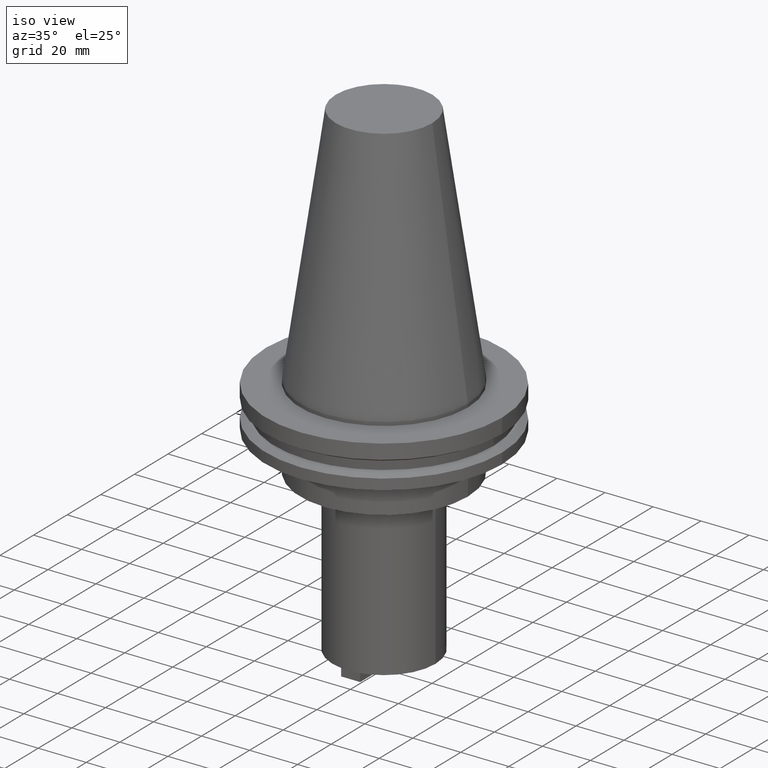
[diagram: clean part render]
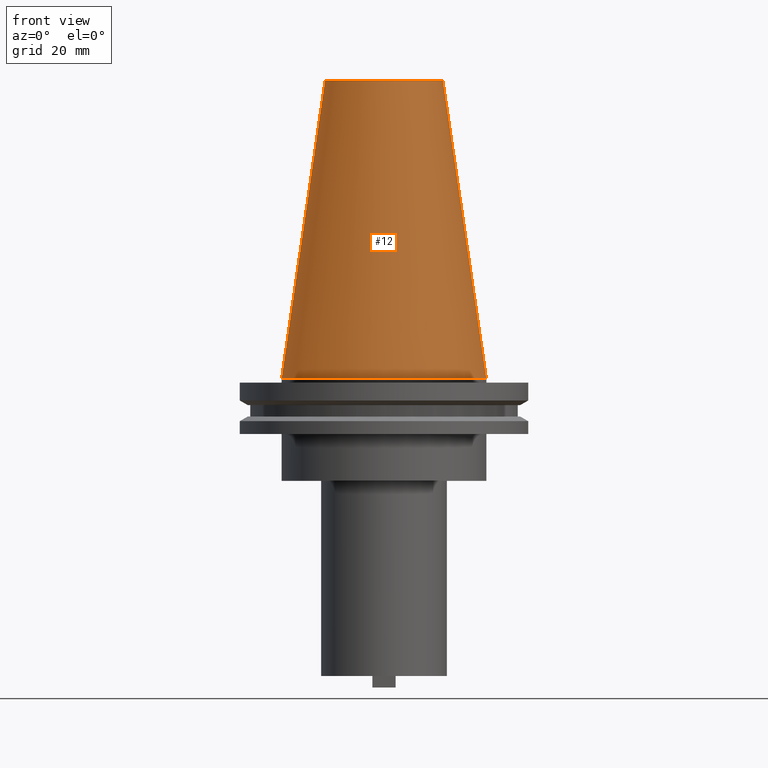
[diagram: tour spotlight — one face highlighted and labeled with its STEP entity id]
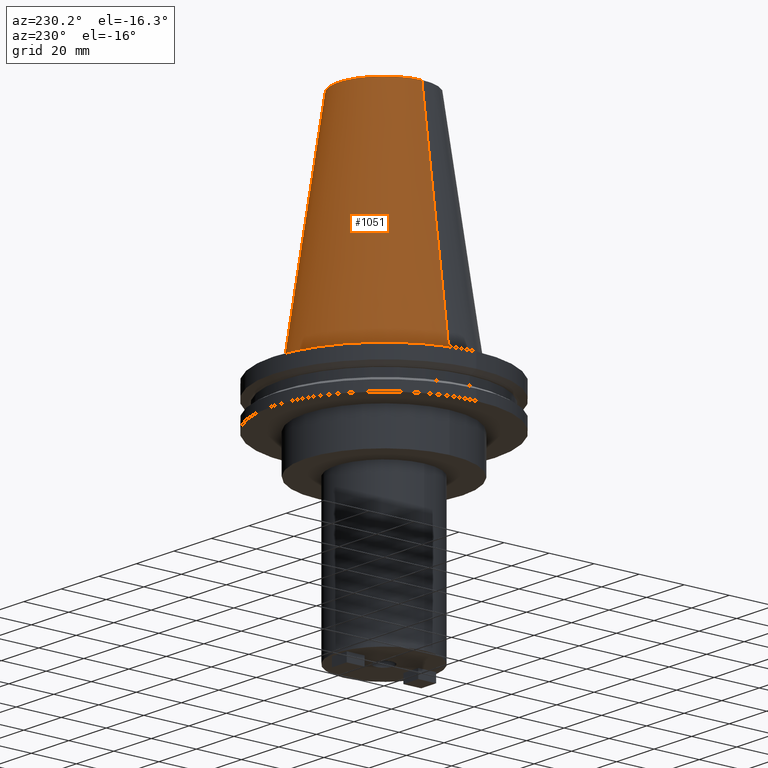
[diagram: tour spotlight — one face highlighted and labeled with its STEP entity id]
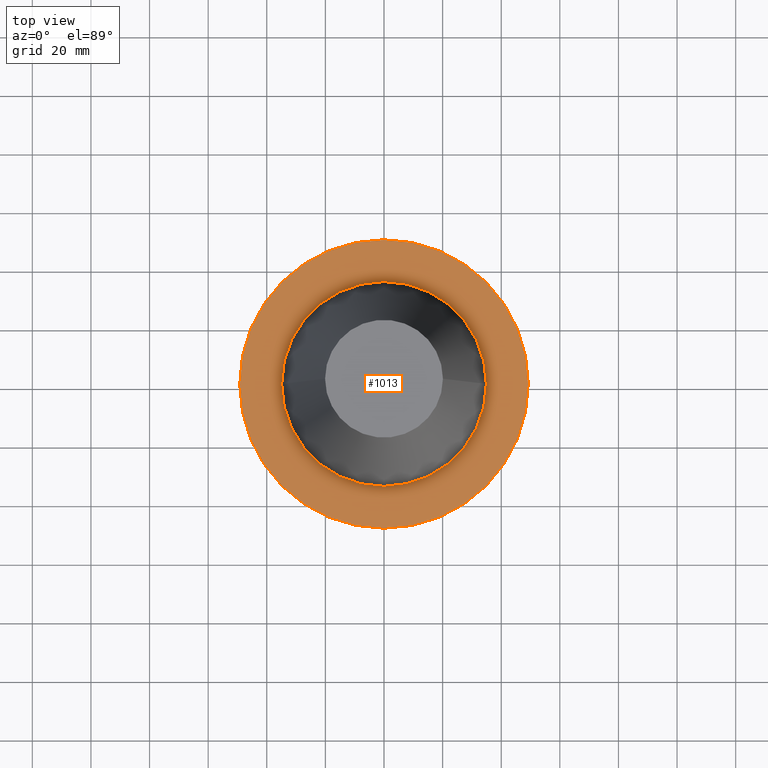
[diagram: tour spotlight — one face highlighted and labeled with its STEP entity id]
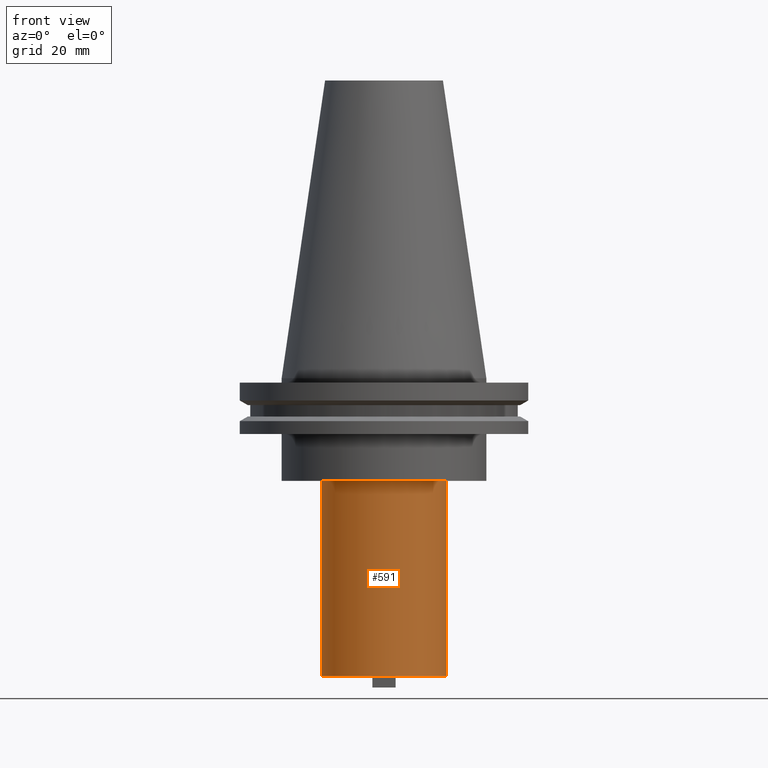
[diagram: tour spotlight — one face highlighted and labeled with its STEP entity id]
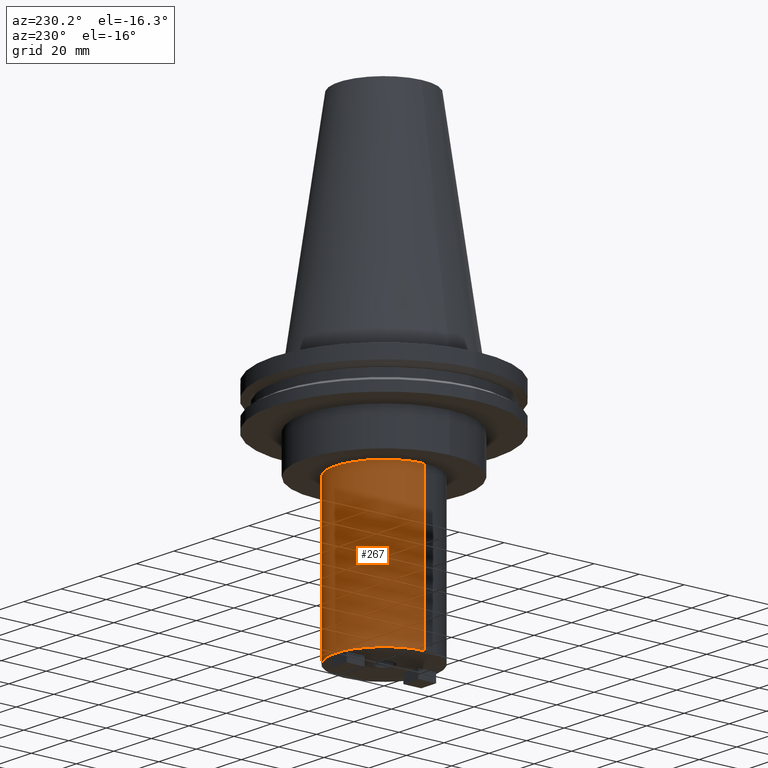
[diagram: tour spotlight — one face highlighted and labeled with its STEP entity id]
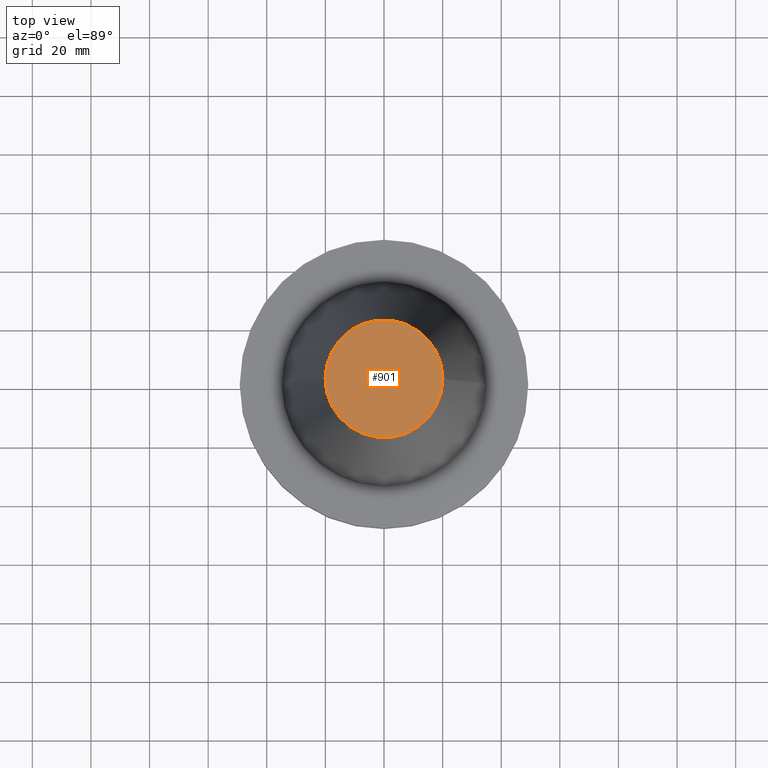
[diagram: tour spotlight — one face highlighted and labeled with its STEP entity id]
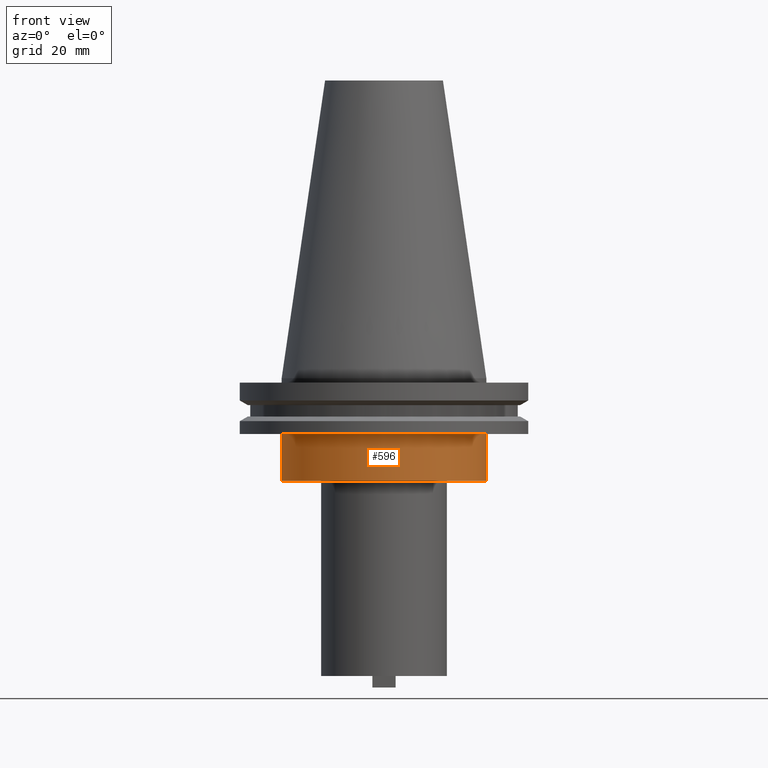
[diagram: tour spotlight — one face highlighted and labeled with its STEP entity id]
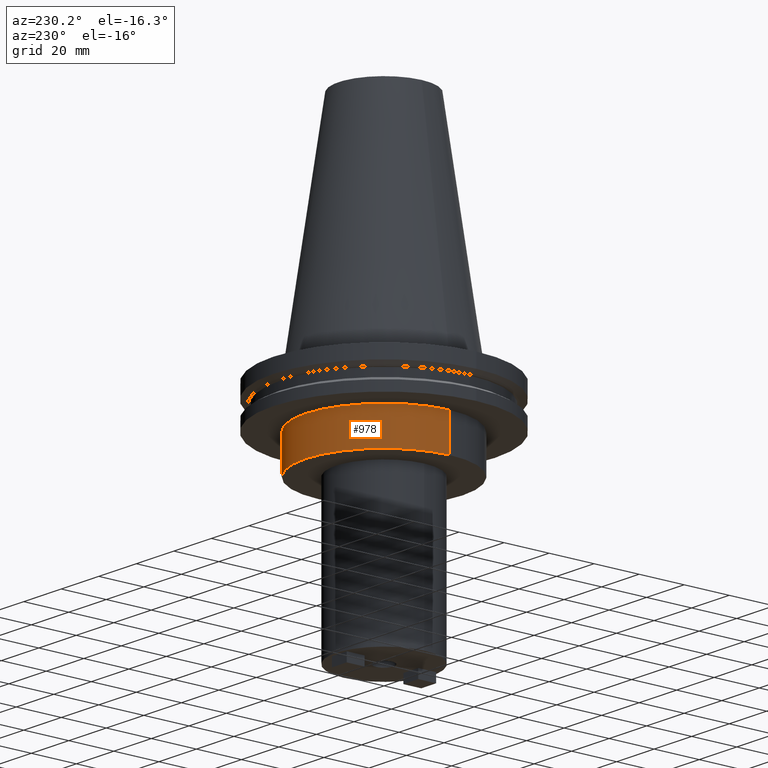
[diagram: tour spotlight — one face highlighted and labeled with its STEP entity id]
A machine part: a face-by-face anatomy tour. The part has 38 B-rep faces; the first image is the clean iso view, then the 8 largest visible faces are spotlighted one at a time (largest first), each with its STEP entity span.

Face 1 — front view, entity #12. In plain terms, the highlighted conical surface has half-angle 8.297 deg.
Definition (entity closure, byte-faithful):
#1 = VECTOR ( 'NONE', #899, 999.9999999999998863 ) ;
#12 = ADVANCED_FACE ( 'NONE', ( #948 ), #171, .T. ) ;
#29 = DIRECTION ( 'NONE',  ( -1.000000000000000000, 0.000000000000000000, 0.000000000000000000 ) ) ;
#53 = DIRECTION ( 'NONE',  ( 0.000000000000000000, 0.000000000000000000, -1.000000000000000000 ) ) ;
#78 = CARTESIAN_POINT ( 'NONE',  ( -34.92499999999999005, 0.000000000000000000, 0.000000000000000000 ) ) ;
#92 = CIRCLE ( 'NONE', #876, 20.10819343178871321 ) ;
#136 = ORIENTED_EDGE ( 'NONE', *, *, #1087, .T. ) ;
#171 = CONICAL_SURFACE ( 'NONE', #402, 34.92499999999999005, 0.1448138465474119452 ) ;
#238 = CARTESIAN_POINT ( 'NONE',  ( 34.92499999999999005, 4.277078946022130098E-15, 0.000000000000000000 ) ) ;
#294 = ORIENTED_EDGE ( 'NONE', *, *, #956, .F. ) ;
#303 = ORIENTED_EDGE ( 'NONE', *, *, #752, .F. ) ;
#325 = ORIENTED_EDGE ( 'NONE', *, *, #884, .T. ) ;
#376 = VERTEX_POINT ( 'NONE', #947 ) ;
#402 = AXIS2_PLACEMENT_3D ( 'NONE', #789, #53, #29 ) ;
#498 = LINE ( 'NONE', #78, #708 ) ;
#515 = DIRECTION ( 'NONE',  ( 1.000000000000000000, 0.000000000000000000, 0.000000000000000000 ) ) ;
#565 = LINE ( 'NONE', #238, #1 ) ;
#597 = CARTESIAN_POINT ( 'NONE',  ( 0.000000000000000000, 0.000000000000000000, 0.000000000000000000 ) ) ;
#654 = EDGE_LOOP ( 'NONE', ( #294, #303, #325, #136 ) ) ;
#708 = VECTOR ( 'NONE', #913, 999.9999999999998863 ) ;
#716 = DIRECTION ( 'NONE',  ( -0.000000000000000000, -0.000000000000000000, 1.000000000000000000 ) ) ;
#739 = CARTESIAN_POINT ( 'NONE',  ( 34.92499999999999005, 4.277078946022130098E-15, 0.000000000000000000 ) ) ;
#752 = EDGE_CURVE ( 'NONE', #755, #923, #92, .T. ) ;
#755 = VERTEX_POINT ( 'NONE', #887 ) ;
#756 = CARTESIAN_POINT ( 'NONE',  ( 20.10819343178871321, 3.369811209154858606E-15, 101.5999999999999801 ) ) ;
#763 = AXIS2_PLACEMENT_3D ( 'NONE', #597, #942, #515 ) ;
#789 = CARTESIAN_POINT ( 'NONE',  ( 0.000000000000000000, 0.000000000000000000, 0.000000000000000000 ) ) ;
#803 = CARTESIAN_POINT ( 'NONE',  ( 0.000000000000000000, 0.000000000000000000, 101.5999999999999801 ) ) ;
#868 = DIRECTION ( 'NONE',  ( 1.000000000000000000, 0.000000000000000000, 0.000000000000000000 ) ) ;
#876 = AXIS2_PLACEMENT_3D ( 'NONE', #803, #716, #868 ) ;
#884 = EDGE_CURVE ( 'NONE', #755, #376, #498, .T. ) ;
#887 = CARTESIAN_POINT ( 'NONE',  ( -20.10819343178871321, 0.000000000000000000, 101.5999999999999801 ) ) ;
#894 = VERTEX_POINT ( 'NONE', #739 ) ;
#899 = DIRECTION ( 'NONE',  ( 0.1443082272672999988, 1.767266086135277066E-17, -0.9895327864921755756 ) ) ;
#913 = DIRECTION ( 'NONE',  ( -0.1443082272672999988, 0.000000000000000000, -0.9895327864921755756 ) ) ;
#923 = VERTEX_POINT ( 'NONE', #756 ) ;
#942 = DIRECTION ( 'NONE',  ( -0.000000000000000000, -0.000000000000000000, 1.000000000000000000 ) ) ;
#947 = CARTESIAN_POINT ( 'NONE',  ( -34.92499999999999005, 0.000000000000000000, 0.000000000000000000 ) ) ;
#948 = FACE_OUTER_BOUND ( 'NONE', #654, .T. ) ;
#956 = EDGE_CURVE ( 'NONE', #923, #894, #565, .T. ) ;
#1055 = CIRCLE ( 'NONE', #763, 34.92499999999999005 ) ;
#1087 = EDGE_CURVE ( 'NONE', #376, #894, #1055, .T. ) ;

Face 2 — auxiliary view, entity #1051. In plain terms, the highlighted conical surface has half-angle 8.297 deg.
Definition (entity closure, byte-faithful):
#1 = VECTOR ( 'NONE', #899, 999.9999999999998863 ) ;
#78 = CARTESIAN_POINT ( 'NONE',  ( -34.92499999999999005, 0.000000000000000000, 0.000000000000000000 ) ) ;
#100 = DIRECTION ( 'NONE',  ( 0.000000000000000000, 0.000000000000000000, -1.000000000000000000 ) ) ;
#148 = DIRECTION ( 'NONE',  ( 1.000000000000000000, 0.000000000000000000, 0.000000000000000000 ) ) ;
#176 = CIRCLE ( 'NONE', #494, 34.92499999999999005 ) ;
#203 = EDGE_LOOP ( 'NONE', ( #830, #582, #976, #662 ) ) ;
#206 = CONICAL_SURFACE ( 'NONE', #512, 34.92499999999999005, 0.1448138465474119452 ) ;
#238 = CARTESIAN_POINT ( 'NONE',  ( 34.92499999999999005, 4.277078946022130098E-15, 0.000000000000000000 ) ) ;
#311 = EDGE_CURVE ( 'NONE', #923, #755, #511, .T. ) ;
#362 = CARTESIAN_POINT ( 'NONE',  ( 0.000000000000000000, 0.000000000000000000, 101.5999999999999801 ) ) ;
#376 = VERTEX_POINT ( 'NONE', #947 ) ;
#435 = AXIS2_PLACEMENT_3D ( 'NONE', #362, #635, #869 ) ;
#494 = AXIS2_PLACEMENT_3D ( 'NONE', #1075, #656, #148 ) ;
#498 = LINE ( 'NONE', #78, #708 ) ;
#511 = CIRCLE ( 'NONE', #435, 20.10819343178871321 ) ;
#512 = AXIS2_PLACEMENT_3D ( 'NONE', #855, #100, #1014 ) ;
#565 = LINE ( 'NONE', #238, #1 ) ;
#582 = ORIENTED_EDGE ( 'NONE', *, *, #956, .T. ) ;
#600 = FACE_OUTER_BOUND ( 'NONE', #203, .T. ) ;
#635 = DIRECTION ( 'NONE',  ( -0.000000000000000000, -0.000000000000000000, 1.000000000000000000 ) ) ;
#656 = DIRECTION ( 'NONE',  ( -0.000000000000000000, -0.000000000000000000, 1.000000000000000000 ) ) ;
#662 = ORIENTED_EDGE ( 'NONE', *, *, #884, .F. ) ;
#708 = VECTOR ( 'NONE', #913, 999.9999999999998863 ) ;
#739 = CARTESIAN_POINT ( 'NONE',  ( 34.92499999999999005, 4.277078946022130098E-15, 0.000000000000000000 ) ) ;
#755 = VERTEX_POINT ( 'NONE', #887 ) ;
#756 = CARTESIAN_POINT ( 'NONE',  ( 20.10819343178871321, 3.369811209154858606E-15, 101.5999999999999801 ) ) ;
#830 = ORIENTED_EDGE ( 'NONE', *, *, #311, .F. ) ;
#855 = CARTESIAN_POINT ( 'NONE',  ( 0.000000000000000000, 0.000000000000000000, 0.000000000000000000 ) ) ;
#869 = DIRECTION ( 'NONE',  ( 1.000000000000000000, 0.000000000000000000, 0.000000000000000000 ) ) ;
#884 = EDGE_CURVE ( 'NONE', #755, #376, #498, .T. ) ;
#887 = CARTESIAN_POINT ( 'NONE',  ( -20.10819343178871321, 0.000000000000000000, 101.5999999999999801 ) ) ;
#894 = VERTEX_POINT ( 'NONE', #739 ) ;
#899 = DIRECTION ( 'NONE',  ( 0.1443082272672999988, 1.767266086135277066E-17, -0.9895327864921755756 ) ) ;
#911 = EDGE_CURVE ( 'NONE', #894, #376, #176, .T. ) ;
#913 = DIRECTION ( 'NONE',  ( -0.1443082272672999988, 0.000000000000000000, -0.9895327864921755756 ) ) ;
#923 = VERTEX_POINT ( 'NONE', #756 ) ;
#947 = CARTESIAN_POINT ( 'NONE',  ( -34.92499999999999005, 0.000000000000000000, 0.000000000000000000 ) ) ;
#956 = EDGE_CURVE ( 'NONE', #923, #894, #565, .T. ) ;
#976 = ORIENTED_EDGE ( 'NONE', *, *, #911, .T. ) ;
#1014 = DIRECTION ( 'NONE',  ( -1.000000000000000000, 0.000000000000000000, 0.000000000000000000 ) ) ;
#1051 = ADVANCED_FACE ( 'NONE', ( #600 ), #206, .T. ) ;
#1075 = CARTESIAN_POINT ( 'NONE',  ( 0.000000000000000000, 0.000000000000000000, 0.000000000000000000 ) ) ;

Face 3 — top view, entity #1013. In plain terms, the highlighted planar face has unit normal (0, 0, -1).
Definition (entity closure, byte-faithful):
#135 = EDGE_CURVE ( 'NONE', #969, #181, #384, .T. ) ;
#147 = ORIENTED_EDGE ( 'NONE', *, *, #697, .F. ) ;
#151 = CARTESIAN_POINT ( 'NONE',  ( 0.000000000000000000, 0.000000000000000000, -1.499999999999987566 ) ) ;
#154 = EDGE_CURVE ( 'NONE', #1074, #817, #986, .T. ) ;
#173 = CIRCLE ( 'NONE', #321, 49.21499999999999631 ) ;
#181 = VERTEX_POINT ( 'NONE', #332 ) ;
#182 = FACE_OUTER_BOUND ( 'NONE', #1061, .T. ) ;
#190 = AXIS2_PLACEMENT_3D ( 'NONE', #861, #437, #686 ) ;
#239 = DIRECTION ( 'NONE',  ( -0.000000000000000000, -0.000000000000000000, 1.000000000000000000 ) ) ;
#308 = DIRECTION ( 'NONE',  ( -0.000000000000000000, -0.000000000000000000, 1.000000000000000000 ) ) ;
#320 = DIRECTION ( 'NONE',  ( 1.000000000000000000, 0.000000000000000000, 0.000000000000000000 ) ) ;
#321 = AXIS2_PLACEMENT_3D ( 'NONE', #151, #400, #971 ) ;
#332 = CARTESIAN_POINT ( 'NONE',  ( 49.21499999999999631, 0.000000000000000000, -1.499999999999987566 ) ) ;
#360 = FACE_BOUND ( 'NONE', #804, .T. ) ;
#384 = CIRCLE ( 'NONE', #743, 49.21499999999999631 ) ;
#400 = DIRECTION ( 'NONE',  ( -0.000000000000000000, -0.000000000000000000, 1.000000000000000000 ) ) ;
#404 = CARTESIAN_POINT ( 'NONE',  ( 0.000000000000000000, 0.000000000000000000, -1.499999999999987566 ) ) ;
#421 = DIRECTION ( 'NONE',  ( -0.000000000000000000, -0.000000000000000000, 1.000000000000000000 ) ) ;
#437 = DIRECTION ( 'NONE',  ( 0.000000000000000000, 0.000000000000000000, -1.000000000000000000 ) ) ;
#456 = ORIENTED_EDGE ( 'NONE', *, *, #154, .F. ) ;
#510 = AXIS2_PLACEMENT_3D ( 'NONE', #404, #239, #587 ) ;
#552 = EDGE_CURVE ( 'NONE', #181, #969, #173, .T. ) ;
#587 = DIRECTION ( 'NONE',  ( 1.000000000000000000, 0.000000000000000000, 0.000000000000000000 ) ) ;
#607 = CARTESIAN_POINT ( 'NONE',  ( 0.000000000000000000, 0.000000000000000000, -1.499999999999987566 ) ) ;
#680 = ORIENTED_EDGE ( 'NONE', *, *, #552, .T. ) ;
#686 = DIRECTION ( 'NONE',  ( -1.000000000000000000, 0.000000000000000000, -0.000000000000000000 ) ) ;
#692 = PLANE ( 'NONE',  #190 ) ;
#697 = EDGE_CURVE ( 'NONE', #817, #1074, #725, .T. ) ;
#725 = CIRCLE ( 'NONE', #775, 34.92499999999999005 ) ;
#743 = AXIS2_PLACEMENT_3D ( 'NONE', #1068, #421, #320 ) ;
#761 = CARTESIAN_POINT ( 'NONE',  ( -49.21499999999999631, 6.027099222003697826E-15, -1.499999999999987566 ) ) ;
#775 = AXIS2_PLACEMENT_3D ( 'NONE', #607, #308, #798 ) ;
#780 = CARTESIAN_POINT ( 'NONE',  ( -34.92499999999999005, 4.277078946022130098E-15, -1.499999999999987566 ) ) ;
#798 = DIRECTION ( 'NONE',  ( 1.000000000000000000, 0.000000000000000000, 0.000000000000000000 ) ) ;
#804 = EDGE_LOOP ( 'NONE', ( #147, #456 ) ) ;
#817 = VERTEX_POINT ( 'NONE', #892 ) ;
#861 = CARTESIAN_POINT ( 'NONE',  ( 0.000000000000000000, 49.21499999999999631, -1.499999999999992895 ) ) ;
#892 = CARTESIAN_POINT ( 'NONE',  ( 34.92499999999999005, 0.000000000000000000, -1.499999999999987566 ) ) ;
#969 = VERTEX_POINT ( 'NONE', #761 ) ;
#971 = DIRECTION ( 'NONE',  ( 1.000000000000000000, 0.000000000000000000, 0.000000000000000000 ) ) ;
#986 = CIRCLE ( 'NONE', #510, 34.92499999999999005 ) ;
#1013 = ADVANCED_FACE ( 'NONE', ( #360, #182 ), #692, .F. ) ;
#1050 = ORIENTED_EDGE ( 'NONE', *, *, #135, .T. ) ;
#1061 = EDGE_LOOP ( 'NONE', ( #680, #1050 ) ) ;
#1068 = CARTESIAN_POINT ( 'NONE',  ( 0.000000000000000000, 0.000000000000000000, -1.499999999999987566 ) ) ;
#1074 = VERTEX_POINT ( 'NONE', #780 ) ;

Face 4 — front view, entity #591. In plain terms, the highlighted cylindrical surface (partial cylindrical patch) has radius 21.4503 mm, axis along (-0, -0, 1).
Definition (entity closure, byte-faithful):
#37 = EDGE_CURVE ( 'NONE', #898, #471, #505, .T. ) ;
#83 = ORIENTED_EDGE ( 'NONE', *, *, #37, .T. ) ;
#99 = EDGE_CURVE ( 'NONE', #959, #1015, #594, .T. ) ;
#122 = CARTESIAN_POINT ( 'NONE',  ( 0.000000000000000000, 0.000000000000000000, -101.5999999999999943 ) ) ;
#167 = CARTESIAN_POINT ( 'NONE',  ( -21.45029999999999859, 2.626904123575046818E-15, 0.000000000000000000 ) ) ;
#212 = DIRECTION ( 'NONE',  ( 1.000000000000000000, 0.000000000000000000, 0.000000000000000000 ) ) ;
#224 = EDGE_CURVE ( 'NONE', #1015, #471, #601, .T. ) ;
#226 = VECTOR ( 'NONE', #485, 1000.000000000000000 ) ;
#244 = DIRECTION ( 'NONE',  ( -0.000000000000000000, -0.000000000000000000, 1.000000000000000000 ) ) ;
#245 = AXIS2_PLACEMENT_3D ( 'NONE', #367, #295, #212 ) ;
#257 = ORIENTED_EDGE ( 'NONE', *, *, #99, .F. ) ;
#295 = DIRECTION ( 'NONE',  ( -0.000000000000000000, -0.000000000000000000, 1.000000000000000000 ) ) ;
#300 = AXIS2_PLACEMENT_3D ( 'NONE', #1019, #244, #361 ) ;
#361 = DIRECTION ( 'NONE',  ( 1.000000000000000000, 0.000000000000000000, 0.000000000000000000 ) ) ;
#367 = CARTESIAN_POINT ( 'NONE',  ( 0.000000000000000000, 0.000000000000000000, -35.04999999999999716 ) ) ;
#370 = DIRECTION ( 'NONE',  ( 1.000000000000000000, 0.000000000000000000, 0.000000000000000000 ) ) ;
#388 = EDGE_CURVE ( 'NONE', #959, #898, #491, .T. ) ;
#401 = CARTESIAN_POINT ( 'NONE',  ( 21.45029999999999859, 0.000000000000000000, -101.5999999999999943 ) ) ;
#470 = CARTESIAN_POINT ( 'NONE',  ( 21.45029999999999859, 0.000000000000000000, -35.04999999999999716 ) ) ;
#471 = VERTEX_POINT ( 'NONE', #470 ) ;
#485 = DIRECTION ( 'NONE',  ( -0.000000000000000000, -0.000000000000000000, 1.000000000000000000 ) ) ;
#491 = CIRCLE ( 'NONE', #794, 21.45029999999999859 ) ;
#505 = LINE ( 'NONE', #1006, #945 ) ;
#591 = ADVANCED_FACE ( 'NONE', ( #754 ), #1030, .T. ) ;
#594 = LINE ( 'NONE', #167, #226 ) ;
#601 = CIRCLE ( 'NONE', #245, 21.45029999999999859 ) ;
#616 = EDGE_LOOP ( 'NONE', ( #257, #784, #83, #953 ) ) ;
#754 = FACE_OUTER_BOUND ( 'NONE', #616, .T. ) ;
#784 = ORIENTED_EDGE ( 'NONE', *, *, #388, .T. ) ;
#794 = AXIS2_PLACEMENT_3D ( 'NONE', #122, #1025, #370 ) ;
#898 = VERTEX_POINT ( 'NONE', #401 ) ;
#938 = CARTESIAN_POINT ( 'NONE',  ( -21.45029999999999859, 2.626904123575046818E-15, -35.04999999999999716 ) ) ;
#945 = VECTOR ( 'NONE', #1085, 1000.000000000000000 ) ;
#953 = ORIENTED_EDGE ( 'NONE', *, *, #224, .F. ) ;
#959 = VERTEX_POINT ( 'NONE', #981 ) ;
#981 = CARTESIAN_POINT ( 'NONE',  ( -21.45029999999999859, 2.626904123575046818E-15, -101.5999999999999943 ) ) ;
#1006 = CARTESIAN_POINT ( 'NONE',  ( 21.45029999999999859, 0.000000000000000000, 0.000000000000000000 ) ) ;
#1015 = VERTEX_POINT ( 'NONE', #938 ) ;
#1019 = CARTESIAN_POINT ( 'NONE',  ( 0.000000000000000000, 0.000000000000000000, 0.000000000000000000 ) ) ;
#1025 = DIRECTION ( 'NONE',  ( -0.000000000000000000, -0.000000000000000000, 1.000000000000000000 ) ) ;
#1030 = CYLINDRICAL_SURFACE ( 'NONE', #300, 21.45029999999999859 ) ;
#1085 = DIRECTION ( 'NONE',  ( -0.000000000000000000, -0.000000000000000000, 1.000000000000000000 ) ) ;

Face 5 — auxiliary view, entity #267. In plain terms, the highlighted cylindrical surface (partial cylindrical patch) has radius 21.4503 mm, axis along (-0, -0, 1).
Definition (entity closure, byte-faithful):
#11 = AXIS2_PLACEMENT_3D ( 'NONE', #163, #69, #327 ) ;
#37 = EDGE_CURVE ( 'NONE', #898, #471, #505, .T. ) ;
#56 = CIRCLE ( 'NONE', #676, 21.45029999999999859 ) ;
#58 = CARTESIAN_POINT ( 'NONE',  ( 0.000000000000000000, 0.000000000000000000, -35.04999999999999716 ) ) ;
#69 = DIRECTION ( 'NONE',  ( -0.000000000000000000, -0.000000000000000000, 1.000000000000000000 ) ) ;
#95 = EDGE_CURVE ( 'NONE', #898, #959, #929, .T. ) ;
#99 = EDGE_CURVE ( 'NONE', #959, #1015, #594, .T. ) ;
#163 = CARTESIAN_POINT ( 'NONE',  ( 0.000000000000000000, 0.000000000000000000, -101.5999999999999943 ) ) ;
#165 = ORIENTED_EDGE ( 'NONE', *, *, #95, .T. ) ;
#167 = CARTESIAN_POINT ( 'NONE',  ( -21.45029999999999859, 2.626904123575046818E-15, 0.000000000000000000 ) ) ;
#226 = VECTOR ( 'NONE', #485, 1000.000000000000000 ) ;
#267 = ADVANCED_FACE ( 'NONE', ( #768 ), #922, .T. ) ;
#281 = AXIS2_PLACEMENT_3D ( 'NONE', #345, #846, #764 ) ;
#327 = DIRECTION ( 'NONE',  ( 1.000000000000000000, 0.000000000000000000, 0.000000000000000000 ) ) ;
#345 = CARTESIAN_POINT ( 'NONE',  ( 0.000000000000000000, 0.000000000000000000, 0.000000000000000000 ) ) ;
#401 = CARTESIAN_POINT ( 'NONE',  ( 21.45029999999999859, 0.000000000000000000, -101.5999999999999943 ) ) ;
#470 = CARTESIAN_POINT ( 'NONE',  ( 21.45029999999999859, 0.000000000000000000, -35.04999999999999716 ) ) ;
#471 = VERTEX_POINT ( 'NONE', #470 ) ;
#485 = DIRECTION ( 'NONE',  ( -0.000000000000000000, -0.000000000000000000, 1.000000000000000000 ) ) ;
#505 = LINE ( 'NONE', #1006, #945 ) ;
#531 = ORIENTED_EDGE ( 'NONE', *, *, #37, .F. ) ;
#594 = LINE ( 'NONE', #167, #226 ) ;
#640 = DIRECTION ( 'NONE',  ( -0.000000000000000000, -0.000000000000000000, 1.000000000000000000 ) ) ;
#676 = AXIS2_PLACEMENT_3D ( 'NONE', #58, #640, #968 ) ;
#714 = EDGE_LOOP ( 'NONE', ( #165, #919, #807, #531 ) ) ;
#764 = DIRECTION ( 'NONE',  ( 1.000000000000000000, 0.000000000000000000, 0.000000000000000000 ) ) ;
#768 = FACE_OUTER_BOUND ( 'NONE', #714, .T. ) ;
#807 = ORIENTED_EDGE ( 'NONE', *, *, #825, .F. ) ;
#825 = EDGE_CURVE ( 'NONE', #471, #1015, #56, .T. ) ;
#846 = DIRECTION ( 'NONE',  ( -0.000000000000000000, -0.000000000000000000, 1.000000000000000000 ) ) ;
#898 = VERTEX_POINT ( 'NONE', #401 ) ;
#919 = ORIENTED_EDGE ( 'NONE', *, *, #99, .T. ) ;
#922 = CYLINDRICAL_SURFACE ( 'NONE', #281, 21.45029999999999859 ) ;
#929 = CIRCLE ( 'NONE', #11, 21.45029999999999859 ) ;
#938 = CARTESIAN_POINT ( 'NONE',  ( -21.45029999999999859, 2.626904123575046818E-15, -35.04999999999999716 ) ) ;
#945 = VECTOR ( 'NONE', #1085, 1000.000000000000000 ) ;
#959 = VERTEX_POINT ( 'NONE', #981 ) ;
#968 = DIRECTION ( 'NONE',  ( 1.000000000000000000, 0.000000000000000000, 0.000000000000000000 ) ) ;
#981 = CARTESIAN_POINT ( 'NONE',  ( -21.45029999999999859, 2.626904123575046818E-15, -101.5999999999999943 ) ) ;
#1006 = CARTESIAN_POINT ( 'NONE',  ( 21.45029999999999859, 0.000000000000000000, 0.000000000000000000 ) ) ;
#1015 = VERTEX_POINT ( 'NONE', #938 ) ;
#1085 = DIRECTION ( 'NONE',  ( -0.000000000000000000, -0.000000000000000000, 1.000000000000000000 ) ) ;

Face 6 — top view, entity #901. In plain terms, the highlighted planar face has unit normal (0, 0, -1).
Definition (entity closure, byte-faithful):
#63 = ORIENTED_EDGE ( 'NONE', *, *, #311, .T. ) ;
#92 = CIRCLE ( 'NONE', #876, 20.10819343178871321 ) ;
#161 = DIRECTION ( 'NONE',  ( 0.000000000000000000, 0.000000000000000000, -1.000000000000000000 ) ) ;
#311 = EDGE_CURVE ( 'NONE', #923, #755, #511, .T. ) ;
#318 = CARTESIAN_POINT ( 'NONE',  ( 0.000000000000000000, 20.10819343178871321, 101.5999999999999943 ) ) ;
#362 = CARTESIAN_POINT ( 'NONE',  ( 0.000000000000000000, 0.000000000000000000, 101.5999999999999801 ) ) ;
#414 = DIRECTION ( 'NONE',  ( -1.000000000000000000, 0.000000000000000000, -0.000000000000000000 ) ) ;
#435 = AXIS2_PLACEMENT_3D ( 'NONE', #362, #635, #869 ) ;
#488 = ORIENTED_EDGE ( 'NONE', *, *, #752, .T. ) ;
#511 = CIRCLE ( 'NONE', #435, 20.10819343178871321 ) ;
#577 = EDGE_LOOP ( 'NONE', ( #488, #63 ) ) ;
#635 = DIRECTION ( 'NONE',  ( -0.000000000000000000, -0.000000000000000000, 1.000000000000000000 ) ) ;
#716 = DIRECTION ( 'NONE',  ( -0.000000000000000000, -0.000000000000000000, 1.000000000000000000 ) ) ;
#746 = FACE_OUTER_BOUND ( 'NONE', #577, .T. ) ;
#752 = EDGE_CURVE ( 'NONE', #755, #923, #92, .T. ) ;
#755 = VERTEX_POINT ( 'NONE', #887 ) ;
#756 = CARTESIAN_POINT ( 'NONE',  ( 20.10819343178871321, 3.369811209154858606E-15, 101.5999999999999801 ) ) ;
#803 = CARTESIAN_POINT ( 'NONE',  ( 0.000000000000000000, 0.000000000000000000, 101.5999999999999801 ) ) ;
#844 = PLANE ( 'NONE',  #965 ) ;
#868 = DIRECTION ( 'NONE',  ( 1.000000000000000000, 0.000000000000000000, 0.000000000000000000 ) ) ;
#869 = DIRECTION ( 'NONE',  ( 1.000000000000000000, 0.000000000000000000, 0.000000000000000000 ) ) ;
#876 = AXIS2_PLACEMENT_3D ( 'NONE', #803, #716, #868 ) ;
#887 = CARTESIAN_POINT ( 'NONE',  ( -20.10819343178871321, 0.000000000000000000, 101.5999999999999801 ) ) ;
#901 = ADVANCED_FACE ( 'NONE', ( #746 ), #844, .F. ) ;
#923 = VERTEX_POINT ( 'NONE', #756 ) ;
#965 = AXIS2_PLACEMENT_3D ( 'NONE', #318, #161, #414 ) ;

Face 7 — front view, entity #596. In plain terms, the highlighted cylindrical surface (partial cylindrical patch) has radius 34.925 mm, axis along (-0, -0, 1).
Definition (entity closure, byte-faithful):
#35 = VECTOR ( 'NONE', #406, 1000.000000000000000 ) ;
#65 = DIRECTION ( 'NONE',  ( 1.000000000000000000, 0.000000000000000000, 0.000000000000000000 ) ) ;
#79 = EDGE_CURVE ( 'NONE', #735, #287, #88, .T. ) ;
#88 = CIRCLE ( 'NONE', #338, 34.92499999999999716 ) ;
#156 = DIRECTION ( 'NONE',  ( -0.000000000000000000, -0.000000000000000000, 1.000000000000000000 ) ) ;
#189 = FACE_OUTER_BOUND ( 'NONE', #192, .T. ) ;
#192 = EDGE_LOOP ( 'NONE', ( #652, #429, #408, #888 ) ) ;
#243 = DIRECTION ( 'NONE',  ( -0.000000000000000000, -0.000000000000000000, 1.000000000000000000 ) ) ;
#276 = DIRECTION ( 'NONE',  ( -0.000000000000000000, -0.000000000000000000, 1.000000000000000000 ) ) ;
#287 = VERTEX_POINT ( 'NONE', #926 ) ;
#338 = AXIS2_PLACEMENT_3D ( 'NONE', #399, #243, #65 ) ;
#386 = AXIS2_PLACEMENT_3D ( 'NONE', #704, #276, #519 ) ;
#390 = CARTESIAN_POINT ( 'NONE',  ( -34.92499999999999716, 4.277078946022130887E-15, -35.04999999999999716 ) ) ;
#399 = CARTESIAN_POINT ( 'NONE',  ( 0.000000000000000000, 0.000000000000000000, -19.04999999999999716 ) ) ;
#406 = DIRECTION ( 'NONE',  ( -0.000000000000000000, -0.000000000000000000, 1.000000000000000000 ) ) ;
#408 = ORIENTED_EDGE ( 'NONE', *, *, #935, .T. ) ;
#410 = LINE ( 'NONE', #920, #690 ) ;
#412 = DIRECTION ( 'NONE',  ( 1.000000000000000000, 0.000000000000000000, 0.000000000000000000 ) ) ;
#429 = ORIENTED_EDGE ( 'NONE', *, *, #671, .T. ) ;
#476 = VERTEX_POINT ( 'NONE', #390 ) ;
#514 = EDGE_CURVE ( 'NONE', #476, #735, #1054, .T. ) ;
#519 = DIRECTION ( 'NONE',  ( 1.000000000000000000, 0.000000000000000000, 0.000000000000000000 ) ) ;
#523 = CYLINDRICAL_SURFACE ( 'NONE', #386, 34.92499999999999716 ) ;
#561 = CARTESIAN_POINT ( 'NONE',  ( 34.92499999999999716, 0.000000000000000000, -35.04999999999999716 ) ) ;
#596 = ADVANCED_FACE ( 'NONE', ( #189 ), #523, .T. ) ;
#652 = ORIENTED_EDGE ( 'NONE', *, *, #514, .F. ) ;
#663 = DIRECTION ( 'NONE',  ( -0.000000000000000000, -0.000000000000000000, 1.000000000000000000 ) ) ;
#671 = EDGE_CURVE ( 'NONE', #476, #809, #946, .T. ) ;
#690 = VECTOR ( 'NONE', #663, 1000.000000000000000 ) ;
#699 = CARTESIAN_POINT ( 'NONE',  ( 0.000000000000000000, 0.000000000000000000, -35.04999999999999716 ) ) ;
#704 = CARTESIAN_POINT ( 'NONE',  ( 0.000000000000000000, 0.000000000000000000, 101.5999999999999943 ) ) ;
#709 = CARTESIAN_POINT ( 'NONE',  ( -34.92499999999999716, 4.277078946022130887E-15, -19.04999999999999716 ) ) ;
#735 = VERTEX_POINT ( 'NONE', #709 ) ;
#795 = AXIS2_PLACEMENT_3D ( 'NONE', #699, #156, #412 ) ;
#809 = VERTEX_POINT ( 'NONE', #561 ) ;
#826 = CARTESIAN_POINT ( 'NONE',  ( -34.92499999999999716, 4.277078946022130887E-15, 101.5999999999999943 ) ) ;
#888 = ORIENTED_EDGE ( 'NONE', *, *, #79, .F. ) ;
#920 = CARTESIAN_POINT ( 'NONE',  ( 34.92499999999999716, 0.000000000000000000, 101.5999999999999943 ) ) ;
#926 = CARTESIAN_POINT ( 'NONE',  ( 34.92499999999999716, 0.000000000000000000, -19.04999999999999716 ) ) ;
#935 = EDGE_CURVE ( 'NONE', #809, #287, #410, .T. ) ;
#946 = CIRCLE ( 'NONE', #795, 34.92499999999999716 ) ;
#1054 = LINE ( 'NONE', #826, #35 ) ;

Face 8 — auxiliary view, entity #978. In plain terms, the highlighted cylindrical surface (partial cylindrical patch) has radius 34.925 mm, axis along (-0, -0, 1).
Definition (entity closure, byte-faithful):
#35 = VECTOR ( 'NONE', #406, 1000.000000000000000 ) ;
#64 = CARTESIAN_POINT ( 'NONE',  ( 0.000000000000000000, 0.000000000000000000, 101.5999999999999943 ) ) ;
#91 = DIRECTION ( 'NONE',  ( -0.000000000000000000, -0.000000000000000000, 1.000000000000000000 ) ) ;
#93 = CIRCLE ( 'NONE', #302, 34.92499999999999716 ) ;
#123 = AXIS2_PLACEMENT_3D ( 'NONE', #64, #91, #1009 ) ;
#141 = CIRCLE ( 'NONE', #747, 34.92499999999999716 ) ;
#144 = FACE_OUTER_BOUND ( 'NONE', #750, .T. ) ;
#251 = DIRECTION ( 'NONE',  ( -0.000000000000000000, -0.000000000000000000, 1.000000000000000000 ) ) ;
#279 = ORIENTED_EDGE ( 'NONE', *, *, #935, .F. ) ;
#287 = VERTEX_POINT ( 'NONE', #926 ) ;
#302 = AXIS2_PLACEMENT_3D ( 'NONE', #1084, #251, #583 ) ;
#390 = CARTESIAN_POINT ( 'NONE',  ( -34.92499999999999716, 4.277078946022130887E-15, -35.04999999999999716 ) ) ;
#406 = DIRECTION ( 'NONE',  ( -0.000000000000000000, -0.000000000000000000, 1.000000000000000000 ) ) ;
#410 = LINE ( 'NONE', #920, #690 ) ;
#413 = ORIENTED_EDGE ( 'NONE', *, *, #514, .T. ) ;
#442 = DIRECTION ( 'NONE',  ( -0.000000000000000000, -0.000000000000000000, 1.000000000000000000 ) ) ;
#467 = ORIENTED_EDGE ( 'NONE', *, *, #1004, .F. ) ;
#476 = VERTEX_POINT ( 'NONE', #390 ) ;
#480 = CYLINDRICAL_SURFACE ( 'NONE', #123, 34.92499999999999716 ) ;
#514 = EDGE_CURVE ( 'NONE', #476, #735, #1054, .T. ) ;
#548 = ORIENTED_EDGE ( 'NONE', *, *, #865, .T. ) ;
#561 = CARTESIAN_POINT ( 'NONE',  ( 34.92499999999999716, 0.000000000000000000, -35.04999999999999716 ) ) ;
#583 = DIRECTION ( 'NONE',  ( 1.000000000000000000, 0.000000000000000000, 0.000000000000000000 ) ) ;
#663 = DIRECTION ( 'NONE',  ( -0.000000000000000000, -0.000000000000000000, 1.000000000000000000 ) ) ;
#690 = VECTOR ( 'NONE', #663, 1000.000000000000000 ) ;
#709 = CARTESIAN_POINT ( 'NONE',  ( -34.92499999999999716, 4.277078946022130887E-15, -19.04999999999999716 ) ) ;
#735 = VERTEX_POINT ( 'NONE', #709 ) ;
#747 = AXIS2_PLACEMENT_3D ( 'NONE', #1022, #442, #770 ) ;
#750 = EDGE_LOOP ( 'NONE', ( #548, #413, #467, #279 ) ) ;
#770 = DIRECTION ( 'NONE',  ( 1.000000000000000000, 0.000000000000000000, 0.000000000000000000 ) ) ;
#809 = VERTEX_POINT ( 'NONE', #561 ) ;
#826 = CARTESIAN_POINT ( 'NONE',  ( -34.92499999999999716, 4.277078946022130887E-15, 101.5999999999999943 ) ) ;
#865 = EDGE_CURVE ( 'NONE', #809, #476, #93, .T. ) ;
#920 = CARTESIAN_POINT ( 'NONE',  ( 34.92499999999999716, 0.000000000000000000, 101.5999999999999943 ) ) ;
#926 = CARTESIAN_POINT ( 'NONE',  ( 34.92499999999999716, 0.000000000000000000, -19.04999999999999716 ) ) ;
#935 = EDGE_CURVE ( 'NONE', #809, #287, #410, .T. ) ;
#978 = ADVANCED_FACE ( 'NONE', ( #144 ), #480, .T. ) ;
#1004 = EDGE_CURVE ( 'NONE', #287, #735, #141, .T. ) ;
#1009 = DIRECTION ( 'NONE',  ( 1.000000000000000000, 0.000000000000000000, 0.000000000000000000 ) ) ;
#1022 = CARTESIAN_POINT ( 'NONE',  ( 0.000000000000000000, 0.000000000000000000, -19.04999999999999716 ) ) ;
#1054 = LINE ( 'NONE', #826, #35 ) ;
#1084 = CARTESIAN_POINT ( 'NONE',  ( 0.000000000000000000, 0.000000000000000000, -35.04999999999999716 ) ) ;